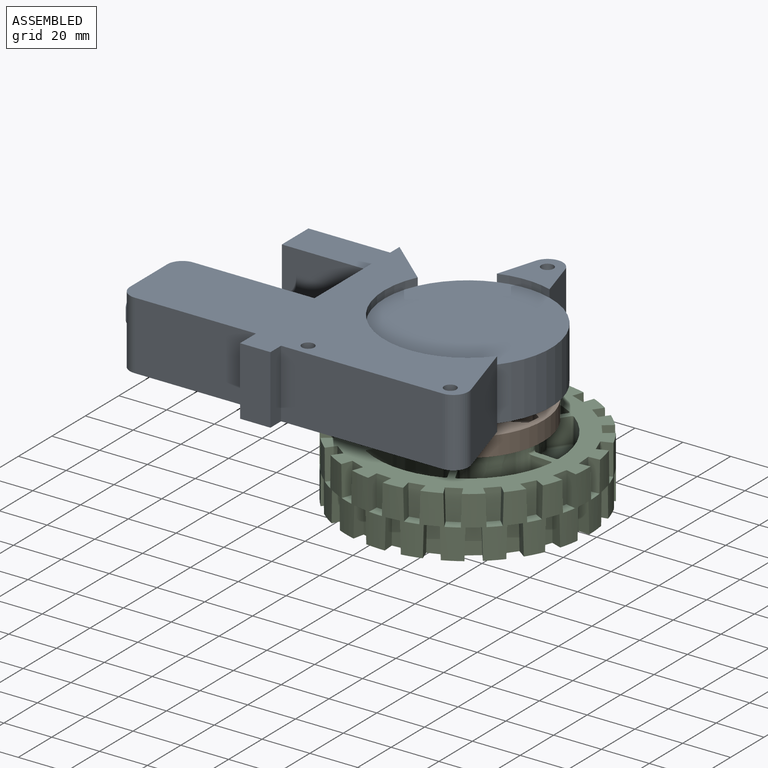
[diagram: assembled view]
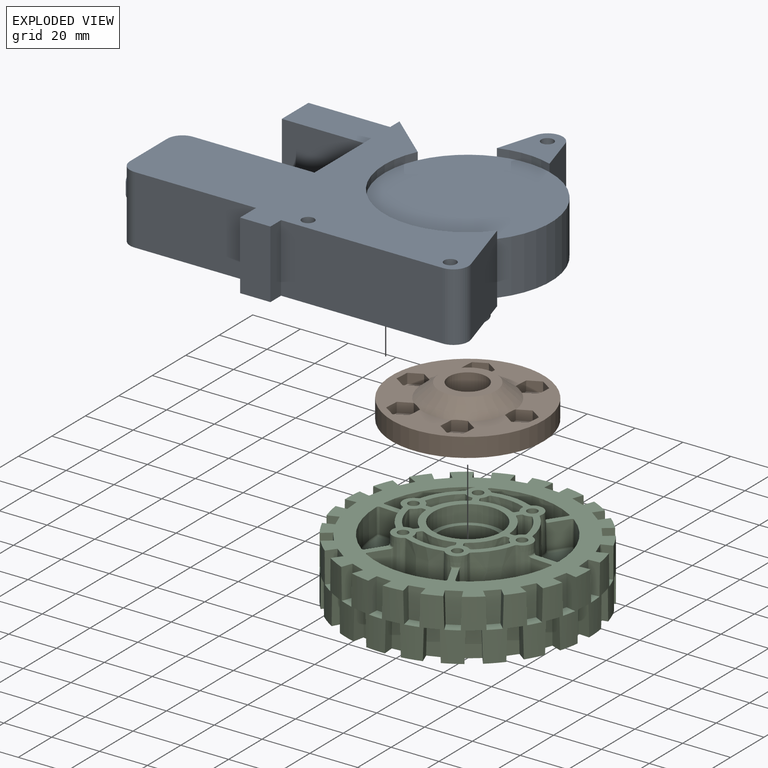
[diagram: exploded view]
GUIDED TOUR — MATED ASSEMBLY (Onshape document cefd3db3cf47cc0d1732fd86, AutoMate assembly cefd3db3cf47cc0d1732fd86_12a34c0ad27917c37a28069c_eab3b29f34b24619269d9a51_default)

This assembly has 3 components, labeled P0..P2 below (a component is one placed occurrence of a part; the same part can appear more than once), held together by 2 mates. A mate is a constraint between two components; its type names the relative motion it leaves free:
  FASTENED — locks the two components together rigidly (no relative motion),
  REVOLUTE — leaves rotation about the listed axis free (a hinge).
Axis/direction vectors are unit vectors and 'through' points are millimeter coordinates, both in the assembly's world frame.

MATES
  1. FASTENED "Fastened 1": P1 <-> P2, direction (0.000, 0.000, -1.000) through (87.31, 36.36, -21.36) mm
  2. REVOLUTE "Revolute 1": P1 <-> P0, axis (0.000, 0.000, 1.000) through (63.55, 37.86, -7.47) mm

ASSEMBLY ORDER
  1. P1 — the base component [order heuristic]
  2. P0 — core [order heuristic]
  3. P2 [order verified]
Order-tag legend:
  [order verified] — this step's position reverses a verified removal order: the component was checked to insert without passing through the ones already placed.
  [order heuristic] — the first 2 components form the assembly's core: parts whose collision-free extraction could not be verified, listed in mate-graph order.

Of the 3 components, 1 carries the full construction recipe — the FeatureScript program that regenerates the part's solid from scratch; the rest are supplied as boundary geometry only.
Each toured component is shown spotlighted twice — in the assembled view, then in the exploded view, where a leader line traces a displaced component back to its assembled socket (saturated green if recipe-attached, orange if geometry-only; every other component desaturated gray) — followed by its recipe or geometry summary and the mates that hold it.
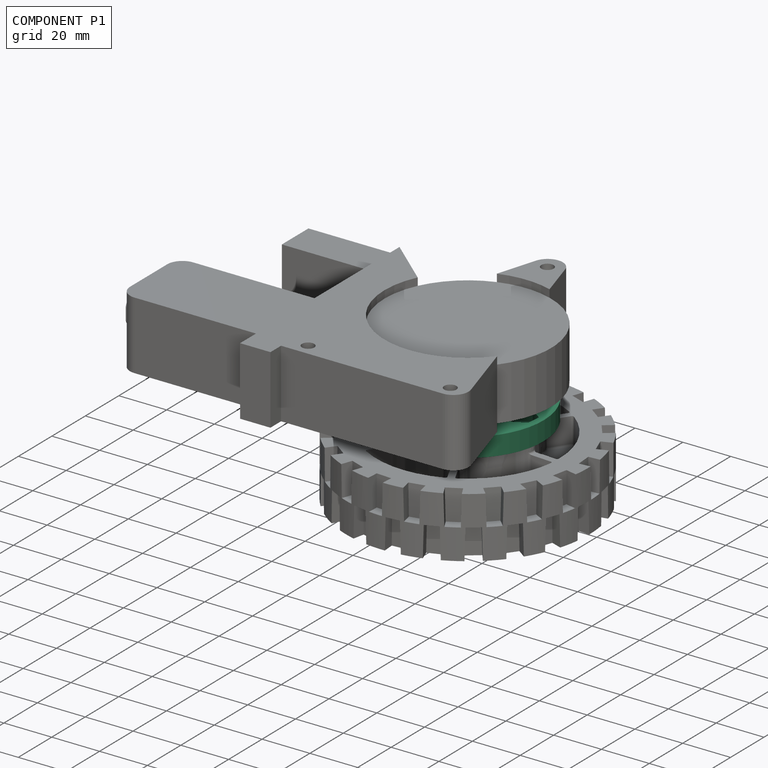
[diagram: component P1 — assembled]
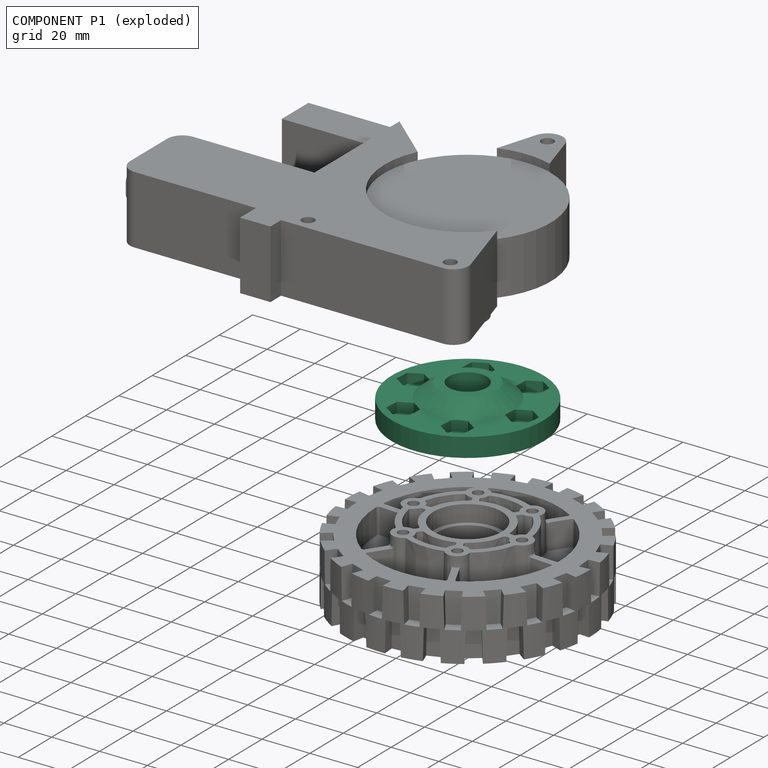
[diagram: component P1 — exploded]
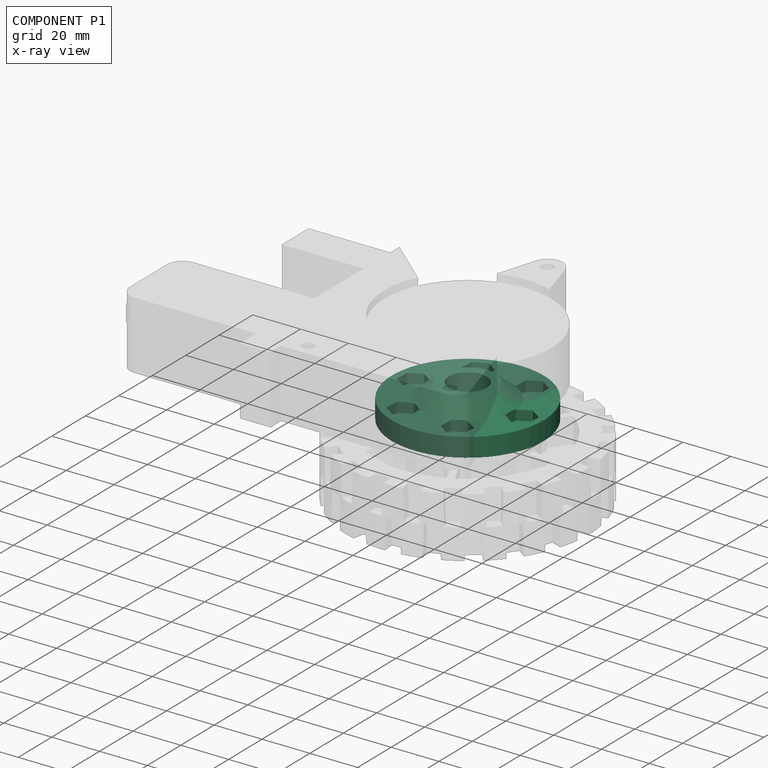
[diagram: component P1 — x-ray view]
COMPONENT P1 — recipe-attached (CADFS 00182406, mesh-verified: the recipe's output STEP matches this component's geometry to below the mesh-comparison resolution (tessellation chordal tolerance ~0.136 mm)).
Held by: FASTENED mate "Fastened 1" to P2; REVOLUTE mate "Revolute 1" to P0.
Construction recipe (FeatureScript — the CAD program that rebuilds this solid; sketch coordinates are in the units given by the * unit suffixes, e.g. mm):

FeatureScript 1511;
import(path : "onshape/std/geometry.fs", version : "1511.0");
import(path : "onshape/std/common.fs", version : "1511.0");
const mm = millimeter;
const VERTEX = EntityType.VERTEX;
const EDGE = EntityType.EDGE;
const FACE = EntityType.FACE;
const BODY = EntityType.BODY;
function v(x, y){return vector(x, y);}
function OD(order){return orderDisambiguation(order);}
function OSD(set){return originalSetDisambiguation(set);}
function TD(topology){return topologyDisambiguation(topology);}
function TDD(query){return trueDependencyDisambiguation(query);}
function sQuery(a, b, c) {return sketchEntityQuery(a, b, c);}

annotation { "Feature Type Name" : "Feature", "Feature Type Description" : "" }
export const myFeature = defineFeature(function(context is Context, id is Id, definition is map)
    precondition{}
    {
        {
            var Q0;
            Q0=qCreatedBy(makeId("Front.planeOp"),FACE);
            var sketch = newSketch(context, id + "F0", { "sketchPlane" : qUnion([Q0])});
            skLineSegment(sketch, "E0", {"start": v(0, 0) * mm, "end": v(-31.75, 0) * mm});
            skLineSegment(sketch, "E1", {"start": v(-31.75, 0) * mm, "end": v(-31.75, 7.94) * mm});
            skLineSegment(sketch, "E2", {"start": v(-31.75, 7.94) * mm, "end": v(-19.05, 7.94) * mm});
            skLineSegment(sketch, "E3", {"start": v(0, 0) * mm, "end": v(0, 13.9) * mm});
            skLineSegment(sketch, "E4", {"start": v(0, 13.9) * mm, "end": v(-11.9, 13.9) * mm});
            skLineSegment(sketch, "E5", {"start": v(-11.9, 13.9) * mm, "end": v(-19.05, 7.94) * mm});
            skSolve(sketch);
        }
        {
            var Q0;
            Q0=makeQuery(id+"F0.imprint","IMPRINT",FACE,{"disambiguationData":[TD([[makeQuery(id+"F0.imprint","IMPRINT",EDGE,{"derivedFrom":sQuery(id+"F0.wireOp",EDGE,"E0")}),-1.0]])]});
            var Q1;
            Q1=sQuery(id+"F0.wireOp",EDGE,"E3");
            revolve(context, id + "F1", {"entities" : qUnion([Q0]), "axis" : qUnion([Q1]), "revolveType" : RevolveType.FULL});
        }
        {
            var Q0;
            Q0=makeQuery(id+"F1.opRevolve","SWEPT_FACE",FACE,{"disambiguationData":[OSD([sQuery(id+"F0.wireOp",EDGE,"E4")])]});
            var sketch = newSketch(context, id + "F2", { "sketchPlane" : qUnion([Q0])});
            skCircle(sketch, "E6", {"center": v(0, 0) * mm, "radius": 7.94 * mm});
            skLineSegment(sketch, "E7", {"start": v(0, 0) * mm, "end": v(23.81, 0) * mm});
            skCircle(sketch, "E8", {"center": v(23.81, 0) * mm, "radius": 2.78 * mm});
            skCircle(sketch, "E9.cCircle", {"center": v(23.81, 0) * mm, "radius": 5.08 * mm, "construction": true});
            skLineSegment(sketch, "E9.0", {"start": v(18.73, -2.93) * mm, "end": v(18.73, 2.93) * mm});
            skLineSegment(sketch, "E9.1", {"start": v(18.73, 2.93) * mm, "end": v(23.81, 5.87) * mm});
            skLineSegment(sketch, "E9.2", {"start": v(23.81, 5.87) * mm, "end": v(28.9, 2.93) * mm});
            skLineSegment(sketch, "E9.3", {"start": v(28.9, 2.93) * mm, "end": v(28.9, -2.93) * mm});
            skLineSegment(sketch, "E9.4", {"start": v(28.9, -2.93) * mm, "end": v(23.81, -5.87) * mm});
            skLineSegment(sketch, "E9.5", {"start": v(23.81, -5.87) * mm, "end": v(18.73, -2.93) * mm});
            skPoint(sketch, "E9.0.midPoint", {"position": v(18.73, 0) * mm});
            skLineSegment(sketch, "E10.1.0", {"start": v(6.83, 23.56) * mm, "end": v(11.9, 26.49) * mm});
            skLineSegment(sketch, "E10.1.1", {"start": v(11.9, 26.49) * mm, "end": v(16.99, 23.56) * mm});
            skLineSegment(sketch, "E10.1.2", {"start": v(16.99, 23.56) * mm, "end": v(16.99, 17.69) * mm});
            skLineSegment(sketch, "E10.1.3", {"start": v(16.99, 17.69) * mm, "end": v(11.9, 14.76) * mm});
            skLineSegment(sketch, "E10.1.4", {"start": v(11.9, 14.76) * mm, "end": v(6.83, 17.69) * mm});
            skLineSegment(sketch, "E10.1.5", {"start": v(6.83, 17.69) * mm, "end": v(6.83, 23.56) * mm});
            skCircle(sketch, "E10.1.6", {"center": v(11.9, 20.62) * mm, "radius": 2.78 * mm});
            skLineSegment(sketch, "E10.2.0", {"start": v(-16.99, 17.69) * mm, "end": v(-16.99, 23.56) * mm});
            skLineSegment(sketch, "E10.2.1", {"start": v(-16.99, 23.56) * mm, "end": v(-11.9, 26.49) * mm});
            skLineSegment(sketch, "E10.2.2", {"start": v(-11.9, 26.49) * mm, "end": v(-6.83, 23.56) * mm});
            skLineSegment(sketch, "E10.2.3", {"start": v(-6.83, 23.56) * mm, "end": v(-6.83, 17.69) * mm});
            skLineSegment(sketch, "E10.2.4", {"start": v(-6.83, 17.69) * mm, "end": v(-11.9, 14.76) * mm});
            skLineSegment(sketch, "E10.2.5", {"start": v(-11.9, 14.76) * mm, "end": v(-16.99, 17.69) * mm});
            skCircle(sketch, "E10.2.6", {"center": v(-11.9, 20.62) * mm, "radius": 2.78 * mm});
            skLineSegment(sketch, "E10.3.0", {"start": v(-23.81, -5.87) * mm, "end": v(-28.9, -2.93) * mm});
            skLineSegment(sketch, "E10.3.1", {"start": v(-28.9, -2.93) * mm, "end": v(-28.9, 2.93) * mm});
            skLineSegment(sketch, "E10.3.2", {"start": v(-28.9, 2.93) * mm, "end": v(-23.81, 5.87) * mm});
            skLineSegment(sketch, "E10.3.3", {"start": v(-23.81, 5.87) * mm, "end": v(-18.73, 2.93) * mm});
            skLineSegment(sketch, "E10.3.4", {"start": v(-18.73, 2.93) * mm, "end": v(-18.73, -2.93) * mm});
            skLineSegment(sketch, "E10.3.5", {"start": v(-18.73, -2.93) * mm, "end": v(-23.81, -5.87) * mm});
            skCircle(sketch, "E10.3.6", {"center": v(-23.81, 0) * mm, "radius": 2.78 * mm});
            skLineSegment(sketch, "E10.4.0", {"start": v(-6.83, -23.56) * mm, "end": v(-11.9, -26.49) * mm});
            skLineSegment(sketch, "E10.4.1", {"start": v(-11.9, -26.49) * mm, "end": v(-16.99, -23.56) * mm});
            skLineSegment(sketch, "E10.4.2", {"start": v(-16.99, -23.56) * mm, "end": v(-16.99, -17.69) * mm});
            skLineSegment(sketch, "E10.4.3", {"start": v(-16.99, -17.69) * mm, "end": v(-11.9, -14.76) * mm});
            skLineSegment(sketch, "E10.4.4", {"start": v(-11.9, -14.76) * mm, "end": v(-6.83, -17.69) * mm});
            skLineSegment(sketch, "E10.4.5", {"start": v(-6.83, -17.69) * mm, "end": v(-6.83, -23.56) * mm});
            skCircle(sketch, "E10.4.6", {"center": v(-11.9, -20.62) * mm, "radius": 2.78 * mm});
            skLineSegment(sketch, "E10.5.0", {"start": v(16.99, -17.69) * mm, "end": v(16.99, -23.56) * mm});
            skLineSegment(sketch, "E10.5.1", {"start": v(16.99, -23.56) * mm, "end": v(11.9, -26.49) * mm});
            skLineSegment(sketch, "E10.5.2", {"start": v(11.9, -26.49) * mm, "end": v(6.83, -23.56) * mm});
            skLineSegment(sketch, "E10.5.3", {"start": v(6.83, -23.56) * mm, "end": v(6.83, -17.69) * mm});
            skLineSegment(sketch, "E10.5.4", {"start": v(6.83, -17.69) * mm, "end": v(11.9, -14.76) * mm});
            skLineSegment(sketch, "E10.5.5", {"start": v(11.9, -14.76) * mm, "end": v(16.99, -17.69) * mm});
            skCircle(sketch, "E10.5.6", {"center": v(11.9, -20.62) * mm, "radius": 2.78 * mm});
            skSolve(sketch);
        }
        {
            var Q0;
            Q0=makeQuery(id+"F2.imprint","IMPRINT",FACE,{"disambiguationData":[TD([[makeQuery(id+"F2.imprint","IMPRINT",EDGE,{"derivedFrom":sQuery(id+"F2.wireOp",EDGE,"E6")}),1.0]])]});
            var Q1;
            Q1=makeQuery(id+"F2.imprint","IMPRINT",FACE,{"disambiguationData":[TD([[makeQuery(id+"F2.imprint","IMPRINT",EDGE,{"derivedFrom":sQuery(id+"F2.wireOp",EDGE,"E10.2.6")}),1.0]])]});
            var Q2;
            Q2=makeQuery(id+"F2.imprint","IMPRINT",FACE,{"disambiguationData":[TD([[makeQuery(id+"F2.imprint","IMPRINT",EDGE,{"derivedFrom":sQuery(id+"F2.wireOp",EDGE,"E10.1.6")}),1.0]])]});
            var Q3;
            Q3=makeQuery(id+"F2.imprint","IMPRINT",FACE,{"disambiguationData":[TD([[makeQuery(id+"F2.imprint","IMPRINT",EDGE,{"derivedFrom":sQuery(id+"F2.wireOp",EDGE,"E8")}),1.0]])]});
            var Q4;
            Q4=makeQuery(id+"F2.imprint","IMPRINT",FACE,{"disambiguationData":[TD([[makeQuery(id+"F2.imprint","IMPRINT",EDGE,{"derivedFrom":sQuery(id+"F2.wireOp",EDGE,"E10.5.6")}),1.0]])]});
            var Q5;
            Q5=makeQuery(id+"F2.imprint","IMPRINT",FACE,{"disambiguationData":[TD([[makeQuery(id+"F2.imprint","IMPRINT",EDGE,{"derivedFrom":sQuery(id+"F2.wireOp",EDGE,"E10.4.6")}),1.0]])]});
            var Q6;
            Q6=makeQuery(id+"F2.imprint","IMPRINT",FACE,{"disambiguationData":[TD([[makeQuery(id+"F2.imprint","IMPRINT",EDGE,{"derivedFrom":sQuery(id+"F2.wireOp",EDGE,"E10.3.6")}),1.0]])]});
            extrude(context, id + "F3", {"entities" : qUnion([Q0, Q1, Q2, Q3, Q4, Q5, Q6]), "operationType" : NewBodyOperationType.REMOVE, "oppositeDirection" : true, "depth" : 25.4 * mm});
        }
        {
            var Q0;
            Q0=makeQuery(id+"F2.imprint","IMPRINT",FACE,{"disambiguationData":[TD([[makeQuery(id+"F2.imprint","IMPRINT",EDGE,{"derivedFrom":sQuery(id+"F2.wireOp",EDGE,"E10.2.0")}),-1.0]])]});
            var Q1;
            Q1=makeQuery(id+"F2.imprint","IMPRINT",FACE,{"disambiguationData":[TD([[makeQuery(id+"F2.imprint","IMPRINT",EDGE,{"derivedFrom":sQuery(id+"F2.wireOp",EDGE,"E10.1.0")}),-1.0]])]});
            var Q2;
            Q2=makeQuery(id+"F2.imprint","IMPRINT",FACE,{"disambiguationData":[TD([[makeQuery(id+"F2.imprint","IMPRINT",EDGE,{"derivedFrom":sQuery(id+"F2.wireOp",EDGE,"E8")}),-1.0]])]});
            var Q3;
            Q3=makeQuery(id+"F2.imprint","IMPRINT",FACE,{"disambiguationData":[TD([[makeQuery(id+"F2.imprint","IMPRINT",EDGE,{"derivedFrom":sQuery(id+"F2.wireOp",EDGE,"E10.5.0")}),-1.0]])]});
            var Q4;
            Q4=makeQuery(id+"F2.imprint","IMPRINT",FACE,{"disambiguationData":[TD([[makeQuery(id+"F2.imprint","IMPRINT",EDGE,{"derivedFrom":sQuery(id+"F2.wireOp",EDGE,"E10.4.0")}),-1.0]])]});
            var Q5;
            Q5=makeQuery(id+"F2.imprint","IMPRINT",FACE,{"disambiguationData":[TD([[makeQuery(id+"F2.imprint","IMPRINT",EDGE,{"derivedFrom":sQuery(id+"F2.wireOp",EDGE,"E10.3.0")}),-1.0]])]});
            extrude(context, id + "F4", {"entities" : qUnion([Q0, Q1, Q2, Q3, Q4, Q5]), "operationType" : NewBodyOperationType.REMOVE, "oppositeDirection" : true, "depth" : 10.16 * mm});
        }
    });
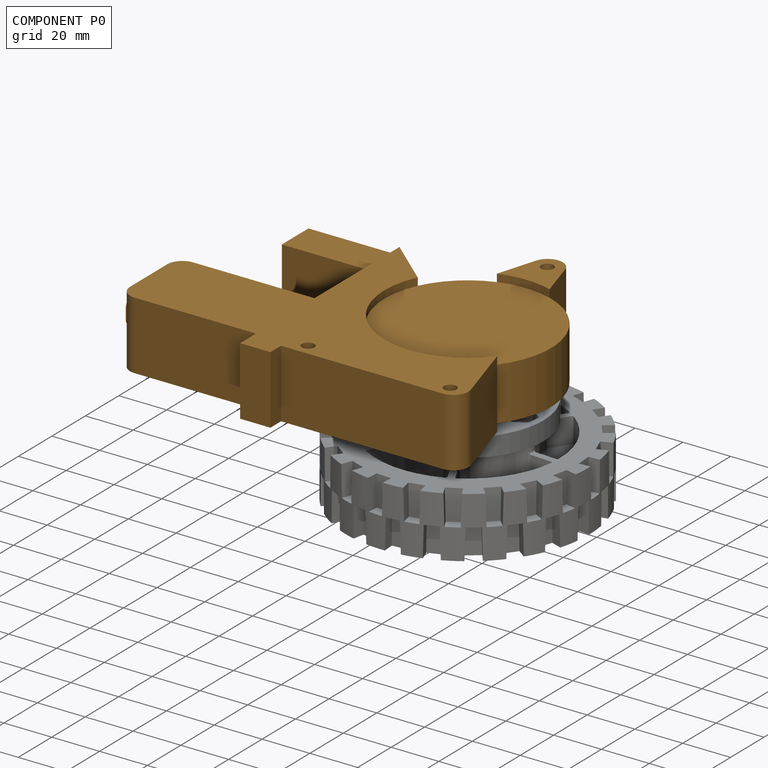
[diagram: component P0 — assembled]
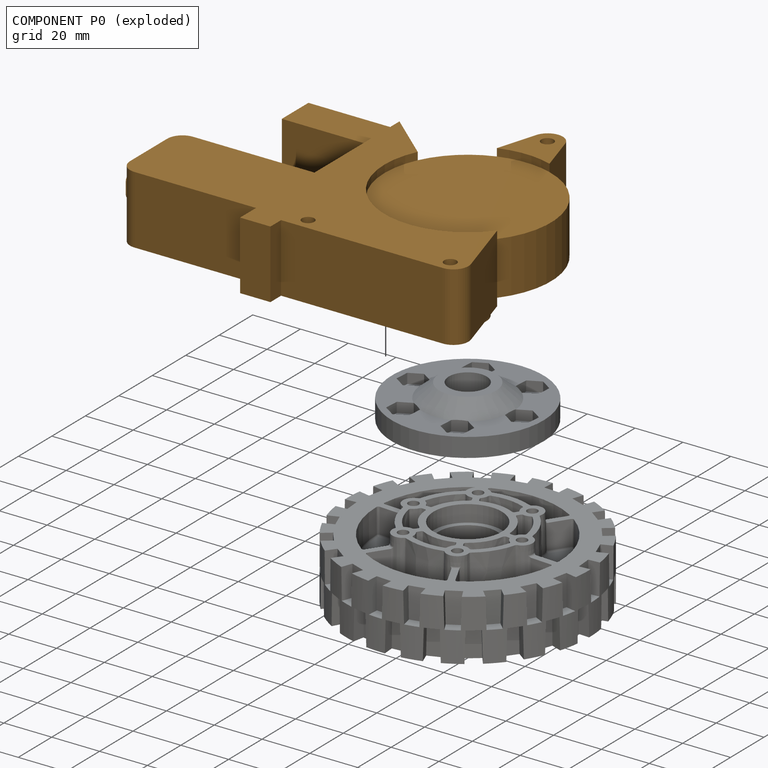
[diagram: component P0 — exploded]
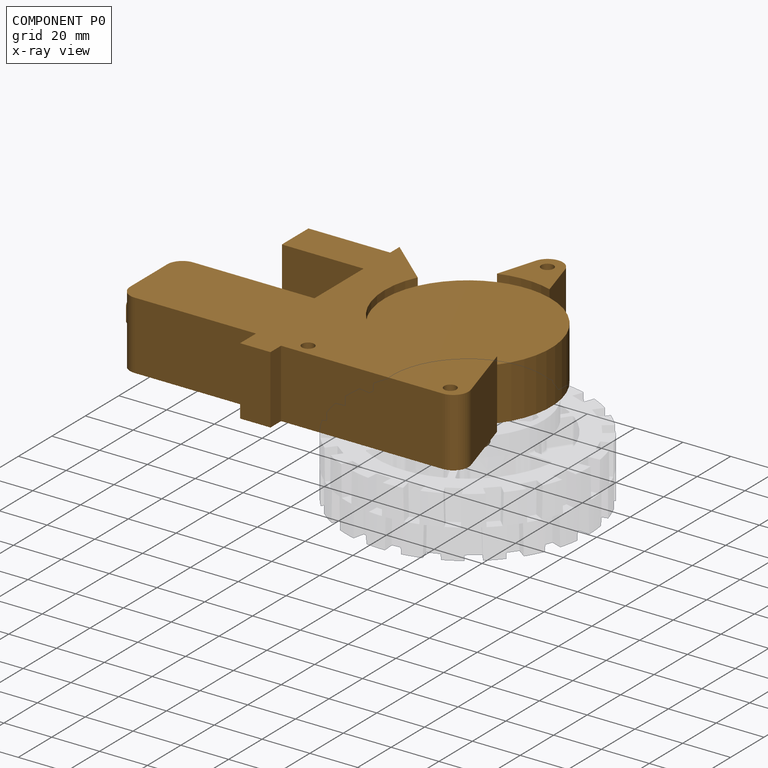
[diagram: component P0 — x-ray view]
COMPONENT P0 — geometry summary (no construction recipe available for this part):
  bounding box: 150.2 x 117.6 x 47.6 mm
  B-rep topology: 1 solid, 47 faces, 238 edges
  volume: 262047 mm^3 (31% of its bounding box)
Held by: REVOLUTE mate "Revolute 1" to P1.
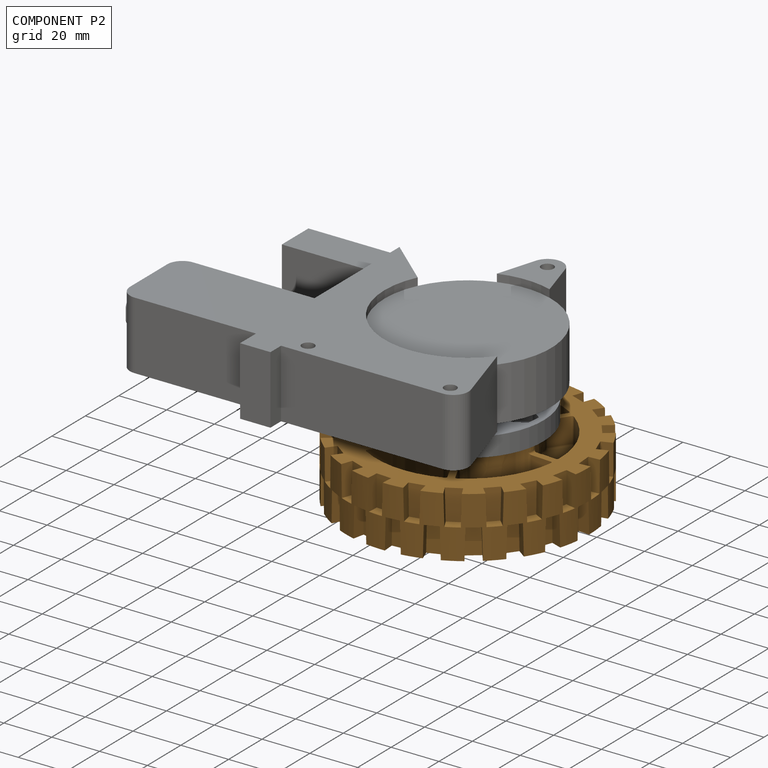
[diagram: component P2 — assembled]
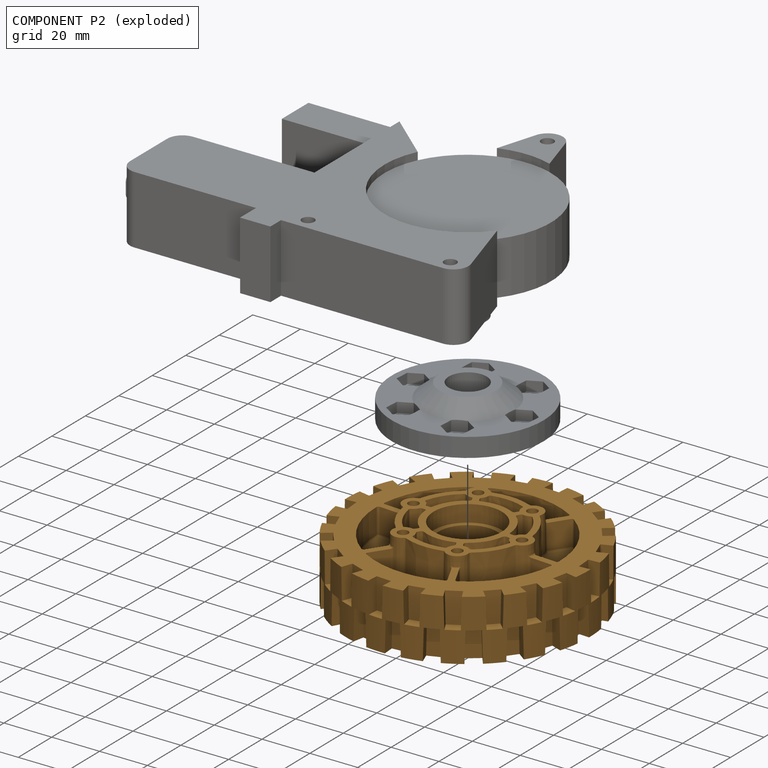
[diagram: component P2 — exploded]
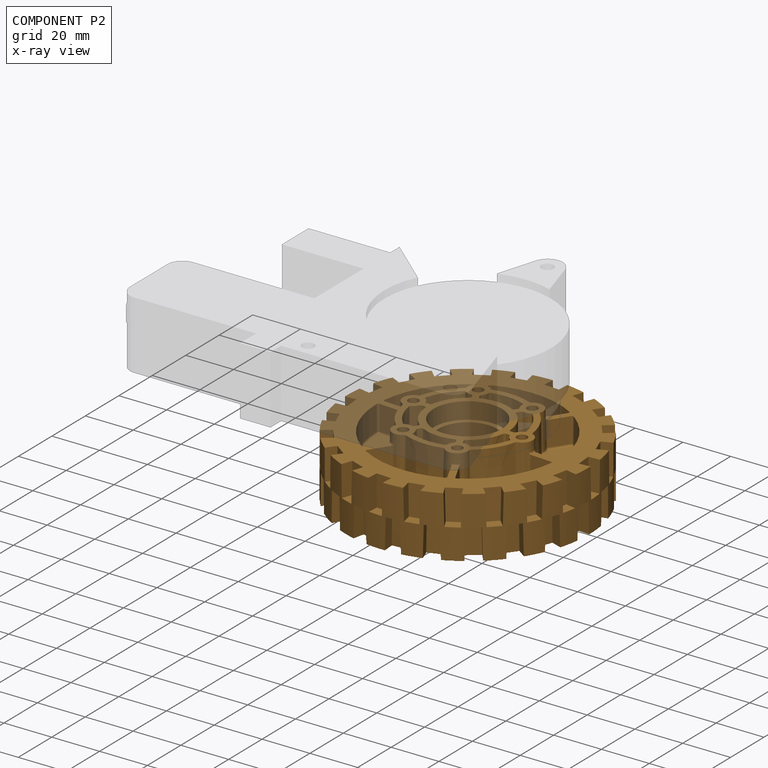
[diagram: component P2 — x-ray view]
COMPONENT P2 — geometry summary (no construction recipe available for this part):
  bounding box: 101.6 x 101.6 x 35.1 mm
  B-rep topology: 1 solid, 792 faces, 3815 edges
  volume: 123031 mm^3 (34% of its bounding box)
  symmetry: 2-fold rotationally symmetric about the x axis; mirror-symmetric across its y mid-plane, z mid-plane
Held by: FASTENED mate "Fastened 1" to P1.
PROVENANCE & LICENSES
Assembly (occurrences, transforms, mates, per-part STEP geometry): AutoMate dataset, Zenodo record 7776208, CC0.
Construction recipes: CADFS (HuggingFace VladPyatov/CADFS, CC-BY-4.0, layered over the ABC dataset), FeatureScript reconstruction programs keyed by ABC model id.
Join: ABC meta listings map ABC model id -> Onshape documentId; within a shared document, parts are matched by geometric signature (bounding-box dims + volume at 0.1% relative tolerance, exact B-rep face/solid counts).
Verification: 1 of this assembly's 3 components carries a recipe attachment, and every attachment is mesh-verified: the CADFS STEP and the AutoMate member STEP were compared as meshes in their shared local frame (symmetric sampled-point-to-mesh distance); worst across the 1 attachment: below the mesh-comparison resolution (tessellation chordal tolerance ~0.136 mm) on a 91 mm part.
Renders: orthographic iso camera (az 35 / el 25); the floor grid conveys scale (grid pitch printed in each image; no ruler). In the exploded view each component is displaced by its stored offset vector: the offsets alone carry the explosion direction (mate normal/axis signs are not orientation cues and do not encode it), and separation distances are assigned per mate-chain, not proportionally to assembly-order depth.
